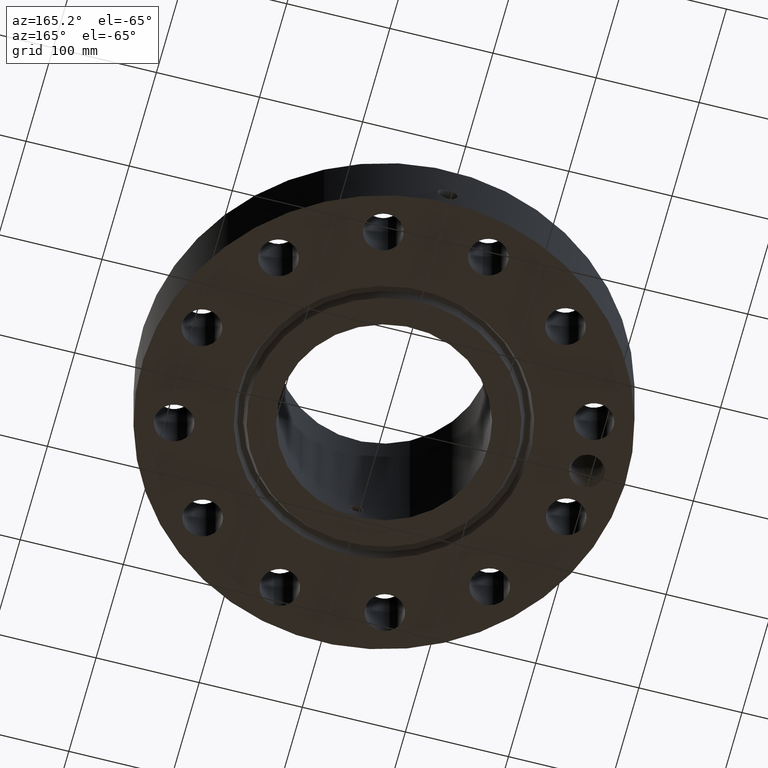
[diagram: clean part render]
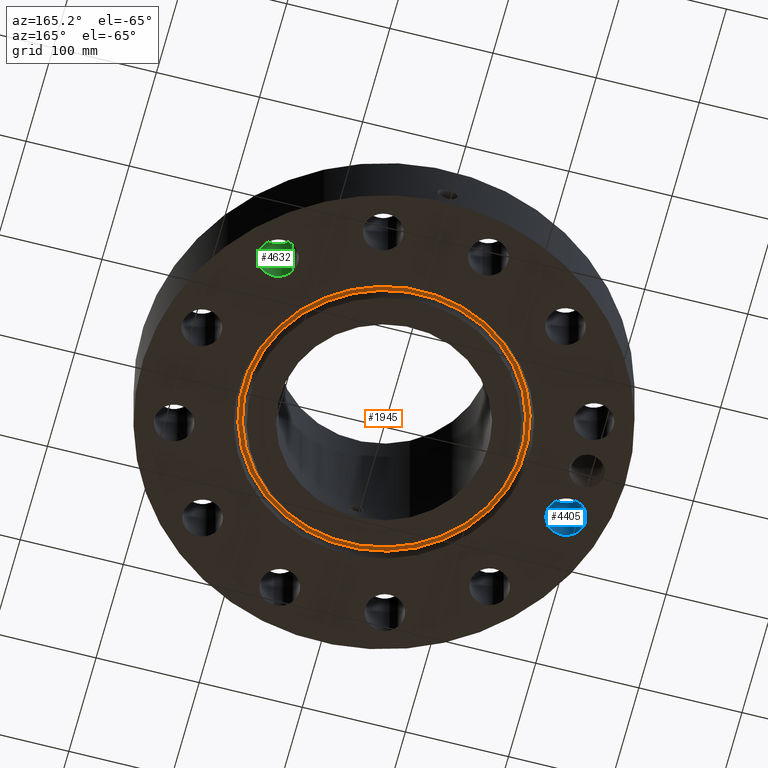
[diagram: same view with three faces highlighted in distinct colors, each labeled with its STEP entity id]
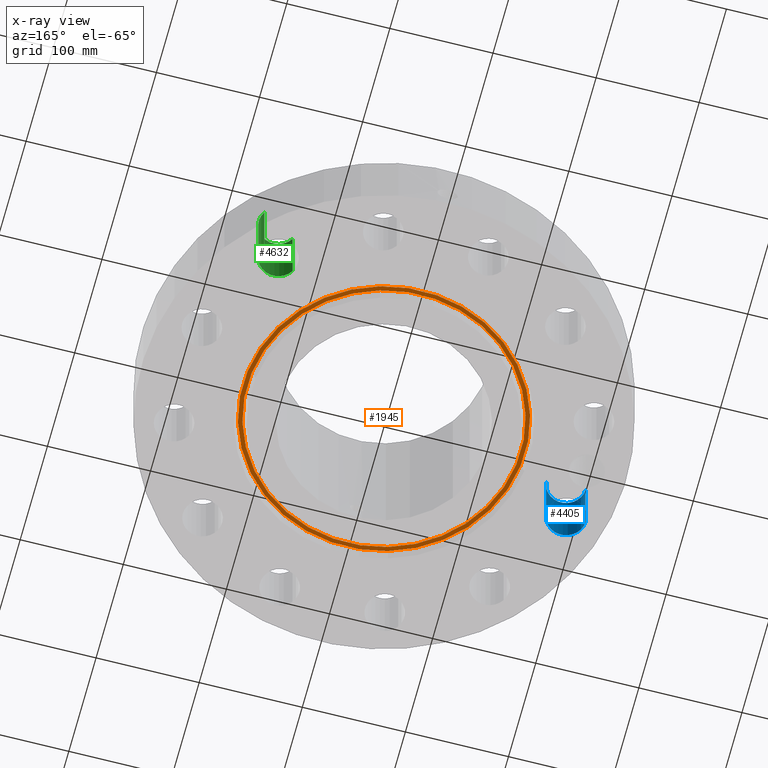
[diagram: x-ray of the same camera — body ghosted, the three highlighted faces saturated]
A machine part, auxiliary view with three faces highlighted in distinct colors.
The next image is the same camera in x-ray (body ghosted, the three faces saturated) — at least one of them is partly hidden behind the body in this view.
Their STEP definitions:

[orange] entity #1945 — the highlighted planar face has unit normal (0, 0, 1).
#1425=AXIS2_PLACEMENT_3D('Circle Axis2P3D',#1423,#1424,$) ;
#1451=AXIS2_PLACEMENT_3D('Circle Axis2P3D',#1449,#1450,$) ;
#1921=AXIS2_PLACEMENT_3D('Plane Axis2P3D',#1918,#1919,#1920) ;
#1925=AXIS2_PLACEMENT_3D('Circle Axis2P3D',#1923,#1924,$) ;
#1934=AXIS2_PLACEMENT_3D('Circle Axis2P3D',#1932,#1933,$) ;
#1423=CARTESIAN_POINT('Axis2P3D Location',(0.,0.,0.312000000001)) ;
#1427=CARTESIAN_POINT('Vertex',(2.50753589932,-4.59001367545,0.312000000001)) ;
#1429=CARTESIAN_POINT('Vertex',(-2.50753589932,4.59001367545,0.312000000001)) ;
#1449=CARTESIAN_POINT('Axis2P3D Location',(0.,0.,0.312000000001)) ;
#1918=CARTESIAN_POINT('Axis2P3D Location',(0.,5.23029270951,0.312000000001)) ;
#1923=CARTESIAN_POINT('Axis2P3D Location',(0.,0.,0.312000000001)) ;
#1927=CARTESIAN_POINT('Vertex',(-2.58636044837,4.73430104467,0.312000000001)) ;
#1929=CARTESIAN_POINT('Vertex',(2.58636044837,-4.73430104467,0.312000000001)) ;
#1932=CARTESIAN_POINT('Axis2P3D Location',(0.,0.,0.312000000001)) ;
#1424=DIRECTION('Axis2P3D Direction',(0.,0.,0.0393700787402)) ;
#1450=DIRECTION('Axis2P3D Direction',(0.,0.,0.0393700787402)) ;
#1919=DIRECTION('Axis2P3D Direction',(0.,0.,0.0393700787402)) ;
#1920=DIRECTION('Axis2P3D XDirection',(0.0393700787402,0.,0.)) ;
#1924=DIRECTION('Axis2P3D Direction',(0.,0.,0.0393700787402)) ;
#1933=DIRECTION('Axis2P3D Direction',(0.,0.,0.0393700787402)) ;
#1938=ORIENTED_EDGE('',*,*,#1931,.F.) ;
#1939=ORIENTED_EDGE('',*,*,#1936,.F.) ;
#1942=ORIENTED_EDGE('',*,*,#1431,.T.) ;
#1943=ORIENTED_EDGE('',*,*,#1453,.T.) ;
#1944=FACE_BOUND('',#1941,.T.) ;
#1945=ADVANCED_FACE('PartBody',(#1940,#1944),#1922,.F.) ;
#1426=CIRCLE('generated circle',#1425,5.23029270951) ;
#1452=CIRCLE('generated circle',#1451,5.23029270951) ;
#1926=CIRCLE('generated circle',#1925,5.39470729053) ;
#1935=CIRCLE('generated circle',#1934,5.39470729053) ;
#1431=EDGE_CURVE('',#1428,#1430,#1426,.T.) ;
#1453=EDGE_CURVE('',#1430,#1428,#1452,.T.) ;
#1931=EDGE_CURVE('',#1928,#1930,#1926,.T.) ;
#1936=EDGE_CURVE('',#1930,#1928,#1935,.T.) ;
#1937=EDGE_LOOP('',(#1938,#1939)) ;
#1941=EDGE_LOOP('',(#1942,#1943)) ;
#1940=FACE_OUTER_BOUND('',#1937,.T.) ;
#1922=PLANE('',#1921) ;
#1428=VERTEX_POINT('',#1427) ;
#1430=VERTEX_POINT('',#1429) ;
#1928=VERTEX_POINT('',#1927) ;
#1930=VERTEX_POINT('',#1929) ;

[blue] entity #4405 — the highlighted cylindrical surface (edge-blend (fillet) strip) has radius 19.05 mm, axis along (-0, 0, -1).
#3085=AXIS2_PLACEMENT_3D('Circle Axis2P3D',#3083,#3084,$) ;
#4378=AXIS2_PLACEMENT_3D('Cylinder Axis2P3D',#4375,#4376,#4377) ;
#4389=AXIS2_PLACEMENT_3D('Circle Axis2P3D',#4387,#4388,$) ;
#3078=CARTESIAN_POINT('Vertex',(-8.23571632514,-2.02354503852,2.81200000001)) ;
#3080=CARTESIAN_POINT('Vertex',(-6.7361339824,-1.98815016058,2.81200000001)) ;
#3083=CARTESIAN_POINT('Axis2P3D Location',(-7.48592515377,-2.00584759955,2.81200000001)) ;
#4375=CARTESIAN_POINT('Axis2P3D Location',(-7.48592515377,-2.00584759955,2.80806299214)) ;
#4380=CARTESIAN_POINT('Line Origine',(-6.7361339824,-1.98815016058,1.40600000001)) ;
#4384=CARTESIAN_POINT('Vertex',(-6.7361339824,-1.98815016058,0.)) ;
#4387=CARTESIAN_POINT('Axis2P3D Location',(-7.48592515377,-2.00584759955,0.)) ;
#4391=CARTESIAN_POINT('Vertex',(-8.23571632514,-2.02354503852,0.)) ;
#4394=CARTESIAN_POINT('Line Origine',(-8.23571632514,-2.02354503852,1.40600000001)) ;
#3084=DIRECTION('Axis2P3D Direction',(0.,0.,-0.0393700787402)) ;
#4376=DIRECTION('Axis2P3D Direction',(-0.,0.,-0.0393700787402)) ;
#4377=DIRECTION('Axis2P3D XDirection',(-0.039359116607,-0.000928999420902,0.)) ;
#4381=DIRECTION('Vector Direction',(0.,0.,-0.0393700787402)) ;
#4388=DIRECTION('Axis2P3D Direction',(-0.,0.,-0.0393700787402)) ;
#4395=DIRECTION('Vector Direction',(0.,0.,-0.0393700787402)) ;
#4382=VECTOR('Line Direction',#4381,0.0393700787402) ;
#4396=VECTOR('Line Direction',#4395,0.0393700787402) ;
#4400=ORIENTED_EDGE('',*,*,#4386,.F.) ;
#4401=ORIENTED_EDGE('',*,*,#4393,.T.) ;
#4402=ORIENTED_EDGE('',*,*,#4398,.T.) ;
#4403=ORIENTED_EDGE('',*,*,#3087,.F.) ;
#4405=ADVANCED_FACE('PartBody',(#4404),#4379,.F.) ;
#3086=CIRCLE('generated circle',#3085,0.750000000003) ;
#4390=CIRCLE('generated circle',#4389,0.750000000003) ;
#4379=CYLINDRICAL_SURFACE('generated cylinder',#4378,0.750000000003) ;
#3087=EDGE_CURVE('',#3081,#3079,#3086,.T.) ;
#4386=EDGE_CURVE('',#4385,#3081,#4383,.F.) ;
#4393=EDGE_CURVE('',#4385,#4392,#4390,.T.) ;
#4398=EDGE_CURVE('',#4392,#3079,#4397,.F.) ;
#4399=EDGE_LOOP('',(#4400,#4401,#4402,#4403)) ;
#4404=FACE_OUTER_BOUND('',#4399,.T.) ;
#4383=LINE('Line',#4380,#4382) ;
#4397=LINE('Line',#4394,#4396) ;
#3079=VERTEX_POINT('',#3078) ;
#3081=VERTEX_POINT('',#3080) ;
#4385=VERTEX_POINT('',#4384) ;
#4392=VERTEX_POINT('',#4391) ;

[green] entity #4632 — the highlighted cylindrical surface (edge-blend (fillet) strip) has radius 19.05 mm, axis along (0, 0, -1).
#3166=AXIS2_PLACEMENT_3D('Circle Axis2P3D',#3164,#3165,$) ;
#4593=AXIS2_PLACEMENT_3D('Cylinder Axis2P3D',#4590,#4591,#4592) ;
#4623=AXIS2_PLACEMENT_3D('Circle Axis2P3D',#4621,#4622,$) ;
#3164=CARTESIAN_POINT('Axis2P3D Location',(5.48007755422,5.48007755422,2.81200000001)) ;
#3168=CARTESIAN_POINT('Vertex',(6.12056703667,5.87029957163,2.81200000001)) ;
#3170=CARTESIAN_POINT('Vertex',(4.83958807177,5.08985553681,2.81200000001)) ;
#4590=CARTESIAN_POINT('Axis2P3D Location',(5.48007755422,5.48007755422,2.80806299214)) ;
#4595=CARTESIAN_POINT('Line Origine',(4.83958807177,5.08985553681,1.40600000001)) ;
#4599=CARTESIAN_POINT('Vertex',(4.83958807177,5.08985553681,0.)) ;
#4606=CARTESIAN_POINT('Vertex',(6.12056703667,5.87029957163,0.)) ;
#4609=CARTESIAN_POINT('Line Origine',(6.12056703667,5.87029957163,1.40600000001)) ;
#4621=CARTESIAN_POINT('Axis2P3D Location',(5.48007755422,5.48007755422,0.)) ;
#3165=DIRECTION('Axis2P3D Direction',(0.,0.,-0.0393700787402)) ;
#4591=DIRECTION('Axis2P3D Direction',(0.,0.,-0.0393700787402)) ;
#4592=DIRECTION('Axis2P3D XDirection',(0.0336214951417,0.0204840954021,0.)) ;
#4596=DIRECTION('Vector Direction',(0.,0.,-0.0393700787402)) ;
#4610=DIRECTION('Vector Direction',(0.,0.,-0.0393700787402)) ;
#4622=DIRECTION('Axis2P3D Direction',(0.,0.,-0.0393700787402)) ;
#4597=VECTOR('Line Direction',#4596,0.0393700787402) ;
#4611=VECTOR('Line Direction',#4610,0.0393700787402) ;
#4627=ORIENTED_EDGE('',*,*,#4613,.F.) ;
#4628=ORIENTED_EDGE('',*,*,#4625,.T.) ;
#4629=ORIENTED_EDGE('',*,*,#4601,.T.) ;
#4630=ORIENTED_EDGE('',*,*,#3172,.F.) ;
#4632=ADVANCED_FACE('PartBody',(#4631),#4594,.F.) ;
#3167=CIRCLE('generated circle',#3166,0.750000000003) ;
#4624=CIRCLE('generated circle',#4623,0.750000000003) ;
#4594=CYLINDRICAL_SURFACE('generated cylinder',#4593,0.750000000003) ;
#3172=EDGE_CURVE('',#3169,#3171,#3167,.T.) ;
#4601=EDGE_CURVE('',#4600,#3171,#4598,.F.) ;
#4613=EDGE_CURVE('',#4607,#3169,#4612,.F.) ;
#4625=EDGE_CURVE('',#4607,#4600,#4624,.T.) ;
#4626=EDGE_LOOP('',(#4627,#4628,#4629,#4630)) ;
#4631=FACE_OUTER_BOUND('',#4626,.T.) ;
#4598=LINE('Line',#4595,#4597) ;
#4612=LINE('Line',#4609,#4611) ;
#3169=VERTEX_POINT('',#3168) ;
#3171=VERTEX_POINT('',#3170) ;
#4600=VERTEX_POINT('',#4599) ;
#4607=VERTEX_POINT('',#4606) ;